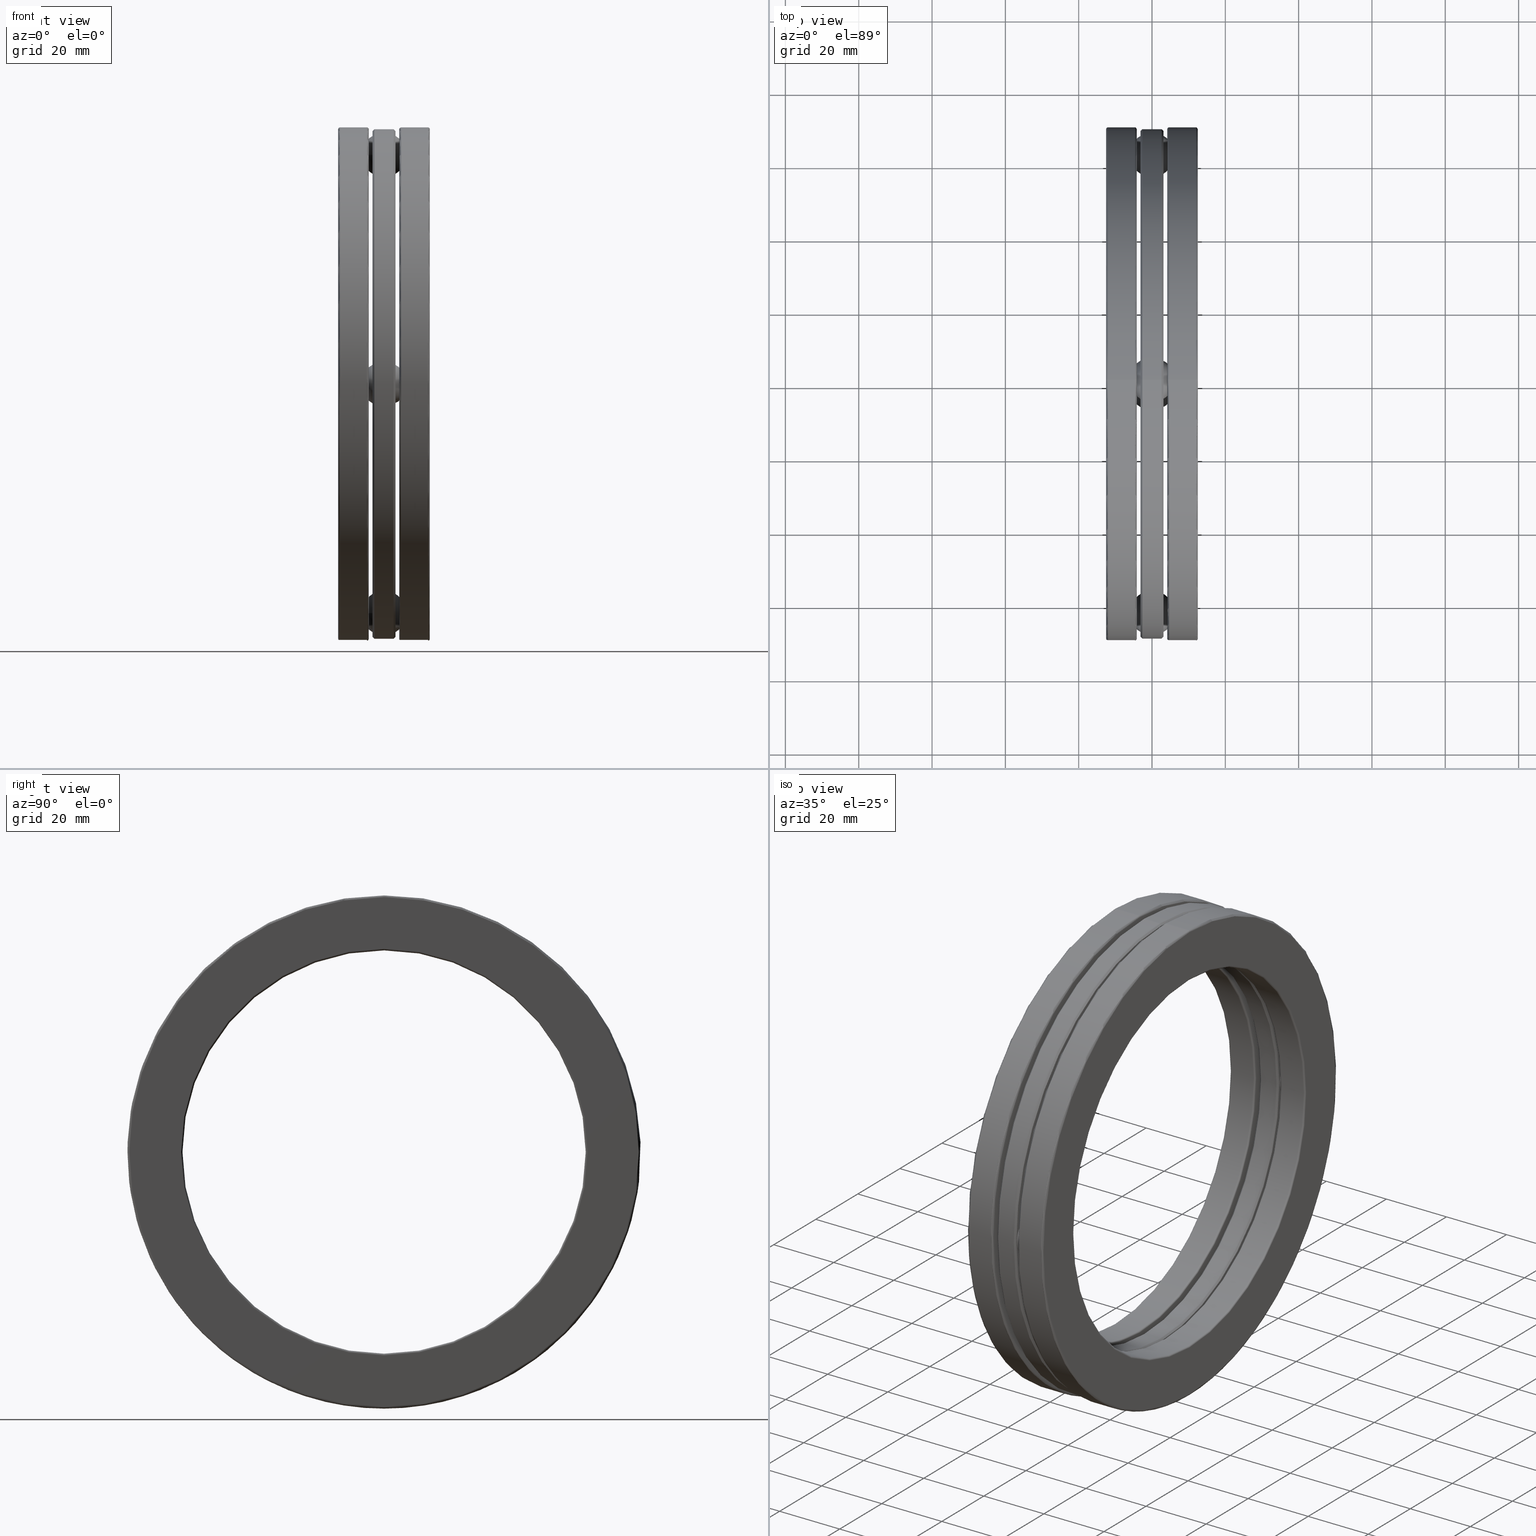
[diagram: canonical four-view strip — front | top / right | iso, engineering-drawing reading convention]
A machine part, canonical four-view strip (front | top / right | iso — engineering-drawing reading convention). The complete STEP part file that produces these views, byte-faithful:
ISO-10303-21;
HEADER;
FILE_DESCRIPTION (( 'STEP AP203' ),
    '1' );
FILE_NAME ('2921-ABB.step',
    '2017-03-07T16:43:14',
    ( '' ),
    ( '' ),
    'SwSTEP 2.0',
    'SolidWorks 2017',
    '' );
FILE_SCHEMA (( 'CONFIG_CONTROL_DESIGN' ));
ENDSEC;

DATA;
#1 = SECURITY_CLASSIFICATION_LEVEL ( 'unclassified' ) ;
#2 = EDGE_LOOP ( 'NONE', ( #341 ) ) ;
#3 = FACE_OUTER_BOUND ( 'NONE', #442, .T. ) ;
#4 = MECHANICAL_CONTEXT ( 'NONE', #197, 'mechanical' ) ;
#5 = CONICAL_SURFACE ( 'NONE', #461, 2.205499999999999800, 0.7853981633974437300 ) ;
#6 = AXIS2_PLACEMENT_3D ( 'NONE', #328, #74, #515 ) ;
#7 = DIRECTION ( 'NONE',  ( -1.000000000000000000, -0.0000000000000000000, -0.0000000000000000000 ) ) ;
#8 = DIRECTION ( 'NONE',  ( -1.000000000000000000, -0.0000000000000000000, -0.0000000000000000000 ) ) ;
#9 = FACE_BOUND ( 'NONE', #388, .T. ) ;
#10 = EDGE_LOOP ( 'NONE', ( #631 ) ) ;
#11 = AXIS2_PLACEMENT_3D ( 'NONE', #387, #265, #450 ) ;
#12 = DIRECTION ( 'NONE',  ( -1.000000000000000000, -0.0000000000000000000, -0.0000000000000000000 ) ) ;
#13 = CYLINDRICAL_SURFACE ( 'NONE', #183, 2.755999999999998900 ) ;
#14 = VERTEX_POINT ( 'NONE', #569 ) ;
#15 = DIRECTION ( 'NONE',  ( 0.0000000000000000000, 0.0000000000000000000, 1.000000000000000000 ) ) ;
#16 = AXIS2_PLACEMENT_3D ( 'NONE', #214, #541, #587 ) ;
#17 = CC_DESIGN_APPROVAL ( #731, ( #567 ) ) ;
#18 = CARTESIAN_POINT ( 'NONE',  ( 0.1640032800000010000, 0.0000000000000000000, 0.0000000000000000000 ) ) ;
#19 = DIRECTION ( 'NONE',  ( 0.0000000000000000000, 0.0000000000000000000, -1.000000000000000000 ) ) ;
#20 = EDGE_LOOP ( 'NONE', ( #379 ) ) ;
#21 = ORIENTED_EDGE ( 'NONE', *, *, #413, .T. ) ;
#22 = DIRECTION ( 'NONE',  ( 1.000000000000000000, 0.0000000000000000000, 0.0000000000000000000 ) ) ;
#23 = CYLINDRICAL_SURFACE ( 'NONE', #102, 2.755999999999999800 ) ;
#24 = DIRECTION ( 'NONE',  ( 1.000000000000000000, 0.0000000000000000000, 0.0000000000000000000 ) ) ;
#25 = VERTEX_POINT ( 'NONE', #423 ) ;
#26 = COORDINATED_UNIVERSAL_TIME_OFFSET ( 5, 0, .BEHIND. ) ;
#27 = EDGE_LOOP ( 'NONE', ( #236 ) ) ;
#28 = FACE_OUTER_BOUND ( 'NONE', #483, .T. ) ;
#29 = EDGE_LOOP ( 'NONE', ( #279 ) ) ;
#30 = CARTESIAN_POINT ( 'NONE',  ( 1.506774805500924100E-016, 2.577498811367471600E-014, 2.460749999999999500 ) ) ;
#31 = CARTESIAN_POINT ( 'NONE',  ( 0.1640032800000010000, 0.0000000000000000000, 0.0000000000000000000 ) ) ;
#32 = FACE_BOUND ( 'NONE', #324, .T. ) ;
#33 = DATE_AND_TIME ( #385, #538 ) ;
#34 = CARTESIAN_POINT ( 'NONE',  ( -0.1230000000000000300, 0.0000000000000000000, 0.0000000000000000000 ) ) ;
#35 = AXIS2_PLACEMENT_3D ( 'NONE', #153, #138, #716 ) ;
#36 = ORIENTED_EDGE ( 'NONE', *, *, #712, .T. ) ;
#37 = DIRECTION ( 'NONE',  ( 1.000000000000000000, 0.0000000000000000000, 0.0000000000000000000 ) ) ;
#38 = EDGE_LOOP ( 'NONE', ( #75 ) ) ;
#39 = EDGE_LOOP ( 'NONE', ( #531 ) ) ;
#40 = CARTESIAN_POINT ( 'NONE',  ( -0.4919999999999999900, 0.0000000000000000000, 0.0000000000000000000 ) ) ;
#41 = CARTESIAN_POINT ( 'NONE',  ( 0.1230000000000000100, -2.460749999999999500, 0.0000000000000000000 ) ) ;
#42 = ADVANCED_FACE ( 'NONE', ( ), #485, .T. ) ;
#43 = EDGE_CURVE ( 'NONE', #588, #588, #780, .T. ) ;
#44 = VERTEX_POINT ( 'NONE', #495 ) ;
#45 = COORDINATED_UNIVERSAL_TIME_OFFSET ( 5, 0, .BEHIND. ) ;
#46 = CARTESIAN_POINT ( 'NONE',  ( 0.1640032800000010000, 0.0000000000000000000, 2.735999999999999300 ) ) ;
#47 = DIRECTION ( 'NONE',  ( -1.000000000000000000, -0.0000000000000000000, -0.0000000000000000000 ) ) ;
#48 = DIRECTION ( 'NONE',  ( 0.0000000000000000000, 0.0000000000000000000, -1.000000000000000000 ) ) ;
#49 = DIRECTION ( 'NONE',  ( -1.000000000000000000, -0.0000000000000000000, -0.0000000000000000000 ) ) ;
#50 = ORIENTED_EDGE ( 'NONE', *, *, #581, .F. ) ;
#51 = AXIS2_PLACEMENT_3D ( 'NONE', #752, #113, #48 ) ;
#52 = ORIENTED_EDGE ( 'NONE', *, *, #286, .T. ) ;
#53 = FACE_OUTER_BOUND ( 'NONE', #79, .T. ) ;
#54 = FACE_OUTER_BOUND ( 'NONE', #162, .T. ) ;
#55 = AXIS2_PLACEMENT_3D ( 'NONE', #168, #804, #97 ) ;
#56 = PERSON_AND_ORGANIZATION_ROLE ( 'design_owner' ) ;
#57 = ORIENTED_EDGE ( 'NONE', *, *, #68, .F. ) ;
#58 = EDGE_CURVE ( 'NONE', #361, #361, #762, .T. ) ;
#59 = CIRCLE ( 'NONE', #135, 2.185500000000000200 ) ;
#60 =( GEOMETRIC_REPRESENTATION_CONTEXT ( 3 ) GLOBAL_UNCERTAINTY_ASSIGNED_CONTEXT ( ( #808 ) ) GLOBAL_UNIT_ASSIGNED_CONTEXT ( ( #121, #192, #571 ) ) REPRESENTATION_CONTEXT ( 'NONE', 'WORKASPACE' ) );
#61 = APPLICATION_PROTOCOL_DEFINITION ( 'international standard', 'config_control_design', 1994, #125 ) ;
#62 = VERTEX_POINT ( 'NONE', #754 ) ;
#63 = AXIS2_PLACEMENT_3D ( 'NONE', #711, #133, #269 ) ;
#64 = CARTESIAN_POINT ( 'NONE',  ( 0.4920000000000003300, 0.0000000000000000000, 0.0000000000000000000 ) ) ;
#65 = DIRECTION ( 'NONE',  ( 0.0000000000000000000, 0.0000000000000000000, 1.000000000000000000 ) ) ;
#66 = ORIENTED_EDGE ( 'NONE', *, *, #58, .T. ) ;
#67 = EDGE_LOOP ( 'NONE', ( #414 ) ) ;
#68 = EDGE_CURVE ( 'NONE', #699, #699, #603, .T. ) ;
#69 = FACE_OUTER_BOUND ( 'NONE', #369, .T. ) ;
#70 = DIRECTION ( 'NONE',  ( -1.000000000000000000, -0.0000000000000000000, -0.0000000000000000000 ) ) ;
#71 = FACE_OUTER_BOUND ( 'NONE', #622, .T. ) ;
#72 = CIRCLE ( 'NONE', #55, 2.755999999999998900 ) ;
#73 = VERTEX_POINT ( 'NONE', #117 ) ;
#74 = DIRECTION ( 'NONE',  ( -1.000000000000000000, -0.0000000000000000000, -0.0000000000000000000 ) ) ;
#75 = ORIENTED_EDGE ( 'NONE', *, *, #286, .F. ) ;
#76 = CARTESIAN_POINT ( 'NONE',  ( 0.1230000000000000100, 1.645530378162120400E-017, 0.0000000000000000000 ) ) ;
#77 = DIRECTION ( 'NONE',  ( 0.0000000000000000000, 0.0000000000000000000, 1.000000000000000000 ) ) ;
#78 = CYLINDRICAL_SURFACE ( 'NONE', #273, 0.2470000000000006100 ) ;
#79 = EDGE_LOOP ( 'NONE', ( #267 ) ) ;
#80 = CARTESIAN_POINT ( 'NONE',  ( -0.4920393700787401000, -2.460749999999999500, 0.0000000000000000000 ) ) ;
#81 = FACE_BOUND ( 'NONE', #98, .T. ) ;
#82 = LENGTH_MEASURE_WITH_UNIT ( LENGTH_MEASURE( 0.02539999999999999900 ), #548 );
#83 = DIRECTION ( 'NONE',  ( -1.000000000000000000, -0.0000000000000000000, -0.0000000000000000000 ) ) ;
#84 = ADVANCED_FACE ( 'NONE', ( #71, #293 ), #739, .F. ) ;
#85 = EDGE_CURVE ( 'NONE', #526, #526, #259, .T. ) ;
#86 = CARTESIAN_POINT ( 'NONE',  ( 0.0000000000000000000, 0.0000000000000000000, 0.0000000000000000000 ) ) ;
#87 = EDGE_LOOP ( 'NONE', ( #694 ) ) ;
#88 = DIRECTION ( 'NONE',  ( 0.0000000000000000000, 0.0000000000000000000, 1.000000000000000000 ) ) ;
#89 = FACE_OUTER_BOUND ( 'NONE', #39, .T. ) ;
#90 = DIRECTION ( 'NONE',  ( 0.0000000000000000000, -1.000000000000000000, 4.424045333869241100E-015 ) ) ;
#91 = CARTESIAN_POINT ( 'NONE',  ( 0.4920000000000003300, 0.0000000000000000000, 0.0000000000000000000 ) ) ;
#92 = ADVANCED_FACE ( 'NONE', ( #584, #566 ), #456, .F. ) ;
#93 = FACE_BOUND ( 'NONE', #580, .T. ) ;
#94 = APPROVAL_DATE_TIME ( #176, #731 ) ;
#95 = DIRECTION ( 'NONE',  ( -1.000000000000000000, -0.0000000000000000000, -0.0000000000000000000 ) ) ;
#96 = AXIS2_PLACEMENT_3D ( 'NONE', #513, #70, #505 ) ;
#97 = DIRECTION ( 'NONE',  ( 0.0000000000000000000, 0.0000000000000000000, 1.000000000000000000 ) ) ;
#98 = EDGE_LOOP ( 'NONE', ( #219 ) ) ;
#99 = FACE_OUTER_BOUND ( 'NONE', #333, .T. ) ;
#100 = CLOSED_SHELL ( 'NONE', ( #543, #370, #648, #111, #355, #92, #477, #470, #255, #717 ) ) ;
#101 = DIRECTION ( 'NONE',  ( 1.000000000000000000, 0.0000000000000000000, 0.0000000000000000000 ) ) ;
#102 = AXIS2_PLACEMENT_3D ( 'NONE', #406, #418, #77 ) ;
#103 = APPROVAL ( #321, 'UNSPECIFIED' ) ;
#104 = CARTESIAN_POINT ( 'NONE',  ( -0.1840032799999996600, 0.0000000000000000000, 0.0000000000000000000 ) ) ;
#105 = CIRCLE ( 'NONE', #589, 2.185499999999999800 ) ;
#106 = CARTESIAN_POINT ( 'NONE',  ( 0.1640032800000010000, 0.0000000000000000000, 2.185499999999999800 ) ) ;
#107 = CARTESIAN_POINT ( 'NONE',  ( -0.1229999999999999600, 2.577498811367471600E-014, 2.460749999999999500 ) ) ;
#108 = AXIS2_PLACEMENT_3D ( 'NONE', #769, #12, #579 ) ;
#109 = CARTESIAN_POINT ( 'NONE',  ( -0.1229999999999999600, 2.460749999999999500, -0.2470000000000006100 ) ) ;
#110 = EDGE_LOOP ( 'NONE', ( #50 ) ) ;
#111 = ADVANCED_FACE ( 'NONE', ( #502, #170 ), #23, .T. ) ;
#112 = FACE_OUTER_BOUND ( 'NONE', #434, .T. ) ;
#113 = DIRECTION ( 'NONE',  ( 1.000000000000000000, 0.0000000000000000000, 0.0000000000000000000 ) ) ;
#114 = EDGE_CURVE ( 'NONE', #193, #193, #673, .T. ) ;
#115 = CIRCLE ( 'NONE', #767, 2.735999999999999300 ) ;
#116 = DIRECTION ( 'NONE',  ( -1.000000000000000000, -0.0000000000000000000, -0.0000000000000000000 ) ) ;
#117 = CARTESIAN_POINT ( 'NONE',  ( -0.1640032799999996700, 0.0000000000000000000, 2.185500000000000200 ) ) ;
#118 = EDGE_LOOP ( 'NONE', ( #519 ) ) ;
#119 = ORIENTED_EDGE ( 'NONE', *, *, #329, .F. ) ;
#120 = FACE_OUTER_BOUND ( 'NONE', #797, .T. ) ;
#121 =( CONVERSION_BASED_UNIT ( 'INCH', #82 ) LENGTH_UNIT ( ) NAMED_UNIT ( #683 ) );
#122 = ORIENTED_EDGE ( 'NONE', *, *, #200, .F. ) ;
#123 = AXIS2_PLACEMENT_3D ( 'NONE', #645, #24, #213 ) ;
#124 = VERTEX_POINT ( 'NONE', #681 ) ;
#125 = APPLICATION_CONTEXT ( 'configuration controlled 3d designs of mechanical parts and assemblies' ) ;
#126 = APPROVAL_STATUS ( 'not_yet_approved' ) ;
#127 = ORIENTED_EDGE ( 'NONE', *, *, #634, .T. ) ;
#128 = EDGE_CURVE ( 'NONE', #215, #215, #325, .T. ) ;
#129 = DIRECTION ( 'NONE',  ( -1.000000000000000000, -0.0000000000000000000, -0.0000000000000000000 ) ) ;
#130 = ORIENTED_EDGE ( 'NONE', *, *, #114, .F. ) ;
#131 = FACE_OUTER_BOUND ( 'NONE', #350, .T. ) ;
#132 = CIRCLE ( 'NONE', #243, 2.185499999999999800 ) ;
#133 = DIRECTION ( 'NONE',  ( -1.000000000000000000, -0.0000000000000000000, -0.0000000000000000000 ) ) ;
#134 = ORIENTED_EDGE ( 'NONE', *, *, #172, .F. ) ;
#135 = AXIS2_PLACEMENT_3D ( 'NONE', #205, #344, #88 ) ;
#136 = CIRCLE ( 'NONE', #235, 0.2470000000000006100 ) ;
#137 = EDGE_LOOP ( 'NONE', ( #522 ) ) ;
#138 = DIRECTION ( 'NONE',  ( -1.000000000000000000, -0.0000000000000000000, -0.0000000000000000000 ) ) ;
#139 = FACE_OUTER_BOUND ( 'NONE', #222, .T. ) ;
#140 = CALENDAR_DATE ( 2017, 7, 3 ) ;
#141 = AXIS2_PLACEMENT_3D ( 'NONE', #41, #484, #676 ) ;
#142 = CC_DESIGN_PERSON_AND_ORGANIZATION_ASSIGNMENT ( #755, #633, ( #624 ) ) ;
#143 = DIRECTION ( 'NONE',  ( 0.0000000000000000000, 1.000000000000000000, -1.106011333467310400E-014 ) ) ;
#144 = CARTESIAN_POINT ( 'NONE',  ( -0.4719999999999999200, 0.0000000000000000000, 0.0000000000000000000 ) ) ;
#145 = DIRECTION ( 'NONE',  ( 0.0000000000000000000, -1.000000000000000000, 4.424045333869241100E-015 ) ) ;
#146 = EDGE_LOOP ( 'NONE', ( #398 ) ) ;
#147 = DIRECTION ( 'NONE',  ( -1.000000000000000000, -0.0000000000000000000, -0.0000000000000000000 ) ) ;
#148 = ORIENTED_EDGE ( 'NONE', *, *, #343, .T. ) ;
#149 = DIRECTION ( 'NONE',  ( 1.000000000000000000, 0.0000000000000000000, 0.0000000000000000000 ) ) ;
#150 = EDGE_LOOP ( 'NONE', ( #390 ) ) ;
#151 = AXIS2_PLACEMENT_3D ( 'NONE', #726, #337, #342 ) ;
#152 = MANIFOLD_SOLID_BREP ( 'CirPattern7', #777 ) ;
#153 = CARTESIAN_POINT ( 'NONE',  ( -0.1029999999999999700, 0.0000000000000000000, 0.0000000000000000000 ) ) ;
#154 = FACE_BOUND ( 'NONE', #706, .T. ) ;
#155 = EDGE_CURVE ( 'NONE', #384, #384, #728, .T. ) ;
#156 = ADVANCED_FACE ( 'NONE', ( #191, #28 ), #78, .F. ) ;
#157 = CARTESIAN_POINT ( 'NONE',  ( -0.1230000000000000300, 0.0000000000000000000, 0.0000000000000000000 ) ) ;
#158 = ORIENTED_EDGE ( 'NONE', *, *, #386, .T. ) ;
#159 = CLOSED_SHELL ( 'NONE', ( #317 ) ) ;
#160 = DIRECTION ( 'NONE',  ( 0.0000000000000000000, 0.0000000000000000000, 1.000000000000000000 ) ) ;
#161 = FACE_OUTER_BOUND ( 'NONE', #271, .T. ) ;
#162 = EDGE_LOOP ( 'NONE', ( #218 ) ) ;
#163 = APPROVAL ( #126, 'UNSPECIFIED' ) ;
#164 = FACE_OUTER_BOUND ( 'NONE', #639, .T. ) ;
#165 = LOCAL_TIME ( 11, 43, 14.00000000000000000, #320 ) ;
#166 = DIRECTION ( 'NONE',  ( -1.000000000000000000, 0.0000000000000000000, 0.0000000000000000000 ) ) ;
#167 = AXIS2_PLACEMENT_3D ( 'NONE', #656, #346, #143 ) ;
#168 = CARTESIAN_POINT ( 'NONE',  ( 0.1840032800000009600, 0.0000000000000000000, 0.0000000000000000000 ) ) ;
#169 = ORIENTED_EDGE ( 'NONE', *, *, #413, .F. ) ;
#170 = FACE_OUTER_BOUND ( 'NONE', #620, .T. ) ;
#171 = CARTESIAN_POINT ( 'NONE',  ( -0.1840032799999997100, 0.0000000000000000000, 0.0000000000000000000 ) ) ;
#172 = EDGE_CURVE ( 'NONE', #25, #25, #392, .T. ) ;
#173 = ADVANCED_FACE ( 'NONE', ( #3, #131 ), #512, .F. ) ;
#174 = CARTESIAN_POINT ( 'NONE',  ( -0.1230000000000000300, 0.0000000000000000000, 2.716000000000000200 ) ) ;
#175 = DIRECTION ( 'NONE',  ( 0.0000000000000000000, 0.0000000000000000000, -1.000000000000000000 ) ) ;
#176 = DATE_AND_TIME ( #345, #508 ) ;
#177 = CARTESIAN_POINT ( 'NONE',  ( -0.4719999999999999200, 0.0000000000000000000, 2.165499999999999800 ) ) ;
#178 = DIRECTION ( 'NONE',  ( 0.0000000000000000000, 1.000000000000000000, -8.848090667738482200E-015 ) ) ;
#179 = CARTESIAN_POINT ( 'NONE',  ( 0.4720000000000012000, 0.0000000000000000000, 2.755999999999998900 ) ) ;
#180 = FACE_OUTER_BOUND ( 'NONE', #600, .T. ) ;
#181 = ORIENTED_EDGE ( 'NONE', *, *, #617, .F. ) ;
#182 = CARTESIAN_POINT ( 'NONE',  ( 0.1230000000000000100, -0.2470000000000092100, -2.460749999999998700 ) ) ;
#183 = AXIS2_PLACEMENT_3D ( 'NONE', #591, #596, #723 ) ;
#184 = FACE_BOUND ( 'NONE', #187, .T. ) ;
#185 = PERSON_AND_ORGANIZATION ( #284, #376 ) ;
#186 = EDGE_CURVE ( 'NONE', #403, #403, #136, .T. ) ;
#187 = EDGE_LOOP ( 'NONE', ( #209 ) ) ;
#188 = MANIFOLD_SOLID_BREP ( 'CirPattern4[2]', #500 ) ;
#189 = EDGE_LOOP ( 'NONE', ( #127 ) ) ;
#190 = APPROVAL_ROLE ( '' ) ;
#191 = FACE_OUTER_BOUND ( 'NONE', #150, .T. ) ;
#192 =( NAMED_UNIT ( * ) PLANE_ANGLE_UNIT ( ) SI_UNIT ( $, .RADIAN. ) );
#193 = VERTEX_POINT ( 'NONE', #179 ) ;
#194 = AXIS2_PLACEMENT_3D ( 'NONE', #776, #198, #578 ) ;
#195 = DIRECTION ( 'NONE',  ( -1.000000000000000000, -0.0000000000000000000, -0.0000000000000000000 ) ) ;
#196 = VERTEX_POINT ( 'NONE', #182 ) ;
#197 = APPLICATION_CONTEXT ( 'configuration controlled 3d designs of mechanical parts and assemblies' ) ;
#198 = DIRECTION ( 'NONE',  ( -1.000000000000000000, -0.0000000000000000000, -0.0000000000000000000 ) ) ;
#199 = CARTESIAN_POINT ( 'NONE',  ( -0.1030000000000000400, 0.0000000000000000000, 0.0000000000000000000 ) ) ;
#200 = EDGE_CURVE ( 'NONE', #62, #62, #307, .T. ) ;
#201 = TOROIDAL_SURFACE ( 'NONE', #809, 2.185499999999999800, 0.01999999999999973700 ) ;
#202 = EDGE_LOOP ( 'NONE', ( #564 ) ) ;
#203 = FACE_OUTER_BOUND ( 'NONE', #316, .T. ) ;
#204 = DATE_AND_TIME ( #216, #721 ) ;
#205 = CARTESIAN_POINT ( 'NONE',  ( -0.1640032799999996700, 0.0000000000000000000, 0.0000000000000000000 ) ) ;
#206 = DIRECTION ( 'NONE',  ( -1.000000000000000000, -0.0000000000000000000, -0.0000000000000000000 ) ) ;
#207 = EDGE_LOOP ( 'NONE', ( #419 ) ) ;
#208 = AXIS2_PLACEMENT_3D ( 'NONE', #76, #37, #296 ) ;
#209 = ORIENTED_EDGE ( 'NONE', *, *, #647, .F. ) ;
#210 = DIRECTION ( 'NONE',  ( 0.0000000000000000000, 0.0000000000000000000, -1.000000000000000000 ) ) ;
#211 = DIRECTION ( 'NONE',  ( 0.0000000000000000000, 0.0000000000000000000, 1.000000000000000000 ) ) ;
#212 = EDGE_LOOP ( 'NONE', ( #542 ) ) ;
#213 = DIRECTION ( 'NONE',  ( 0.0000000000000000000, 0.0000000000000000000, -1.000000000000000000 ) ) ;
#214 = CARTESIAN_POINT ( 'NONE',  ( 0.4920000000000003300, 0.0000000000000000000, 0.0000000000000000000 ) ) ;
#215 = VERTEX_POINT ( 'NONE', #555 ) ;
#216 = CALENDAR_DATE ( 2017, 7, 3 ) ;
#217 = ADVANCED_BREP_SHAPE_REPRESENTATION ( '2921-ABB', ( #248, #627, #504, #480, #188, #653, #152, #821 ), #60 ) ;
#218 = ORIENTED_EDGE ( 'NONE', *, *, #58, .F. ) ;
#219 = ORIENTED_EDGE ( 'NONE', *, *, #454, .F. ) ;
#220 = CYLINDRICAL_SURFACE ( 'NONE', #96, 2.165500000000000600 ) ;
#221 = CC_DESIGN_DATE_AND_TIME_ASSIGNMENT ( #823, #700, ( #624 ) ) ;
#222 = EDGE_LOOP ( 'NONE', ( #759 ) ) ;
#223 = DIRECTION ( 'NONE',  ( -1.000000000000000000, -0.0000000000000000000, -0.0000000000000000000 ) ) ;
#224 = FACE_BOUND ( 'NONE', #67, .T. ) ;
#225 = VERTEX_POINT ( 'NONE', #552 ) ;
#226 = AXIS2_PLACEMENT_3D ( 'NONE', #468, #530, #145 ) ;
#227 = DESIGN_CONTEXT ( 'detailed design', #125, 'design' ) ;
#228 = DIRECTION ( 'NONE',  ( -1.000000000000000000, -0.0000000000000000000, -0.0000000000000000000 ) ) ;
#229 = ADVANCED_FACE ( 'NONE', ( #349, #180 ), #610, .T. ) ;
#230 = EDGE_LOOP ( 'NONE', ( #714 ) ) ;
#231 = DIRECTION ( 'NONE',  ( -1.000000000000000000, -0.0000000000000000000, -0.0000000000000000000 ) ) ;
#232 = TOROIDAL_SURFACE ( 'NONE', #604, 2.185499999999999800, 0.02000000000000002500 ) ;
#233 = DATE_AND_TIME ( #400, #521 ) ;
#234 = DIRECTION ( 'NONE',  ( 0.0000000000000000000, -1.000000000000000000, 2.212022666934620500E-015 ) ) ;
#235 = AXIS2_PLACEMENT_3D ( 'NONE', #107, #49, #178 ) ;
#236 = ORIENTED_EDGE ( 'NONE', *, *, #128, .T. ) ;
#237 = ADVANCED_FACE ( 'NONE', ( #437, #313 ), #789, .F. ) ;
#238 = CARTESIAN_POINT ( 'NONE',  ( 0.1230000000000000100, 2.460749999999999500, 0.0000000000000000000 ) ) ;
#239 = VERTEX_POINT ( 'NONE', #675 ) ;
#240 = CARTESIAN_POINT ( 'NONE',  ( 0.1029999999999999700, 0.0000000000000000000, 2.736000000000000200 ) ) ;
#241 = DIRECTION ( 'NONE',  ( -1.000000000000000000, -0.0000000000000000000, -0.0000000000000000000 ) ) ;
#242 = ADVANCED_FACE ( 'NONE', ( ), #399, .T. ) ;
#243 = AXIS2_PLACEMENT_3D ( 'NONE', #475, #416, #657 ) ;
#244 = CARTESIAN_POINT ( 'NONE',  ( -0.4919999999999999900, 0.0000000000000000000, 2.185499999999999800 ) ) ;
#245 = EDGE_LOOP ( 'NONE', ( #130 ) ) ;
#246 = EDGE_LOOP ( 'NONE', ( #408 ) ) ;
#247 = FACE_OUTER_BOUND ( 'NONE', #725, .T. ) ;
#248 = MANIFOLD_SOLID_BREP ( 'Revolve1', #100 ) ;
#249 = DIRECTION ( 'NONE',  ( 0.0000000000000000000, 0.0000000000000000000, 1.000000000000000000 ) ) ;
#250 = DIRECTION ( 'NONE',  ( 0.0000000000000000000, 0.0000000000000000000, 1.000000000000000000 ) ) ;
#251 = EDGE_CURVE ( 'NONE', #718, #718, #291, .T. ) ;
#252 = CONICAL_SURFACE ( 'NONE', #501, 2.736000000000000200, 0.7853981633974427300 ) ;
#253 = VERTEX_POINT ( 'NONE', #46 ) ;
#254 = CARTESIAN_POINT ( 'NONE',  ( 0.1229999999999999700, 0.0000000000000000000, 2.716000000000000200 ) ) ;
#255 = ADVANCED_FACE ( 'NONE', ( #760, #89 ), #232, .T. ) ;
#256 = APPROVAL_ROLE ( '' ) ;
#257 = ORIENTED_EDGE ( 'NONE', *, *, #665, .T. ) ;
#258 = FACE_OUTER_BOUND ( 'NONE', #20, .T. ) ;
#259 = CIRCLE ( 'NONE', #493, 2.165500000000000600 ) ;
#260 = VERTEX_POINT ( 'NONE', #486 ) ;
#261 = DIRECTION ( 'NONE',  ( 1.000000000000000000, 0.0000000000000000000, 0.0000000000000000000 ) ) ;
#262 = EDGE_CURVE ( 'NONE', #506, #506, #445, .T. ) ;
#263 = ORIENTED_EDGE ( 'NONE', *, *, #343, .F. ) ;
#264 = FACE_OUTER_BOUND ( 'NONE', #451, .T. ) ;
#265 = DIRECTION ( 'NONE',  ( 1.000000000000000000, 0.0000000000000000000, 0.0000000000000000000 ) ) ;
#266 = CIRCLE ( 'NONE', #573, 2.755999999999999800 ) ;
#267 = ORIENTED_EDGE ( 'NONE', *, *, #815, .F. ) ;
#268 = AXIS2_PLACEMENT_3D ( 'NONE', #34, #605, #742 ) ;
#269 = DIRECTION ( 'NONE',  ( 0.0000000000000000000, 0.0000000000000000000, 1.000000000000000000 ) ) ;
#270 = CIRCLE ( 'NONE', #194, 2.165500000000000600 ) ;
#271 = EDGE_LOOP ( 'NONE', ( #304 ) ) ;
#272 = DIRECTION ( 'NONE',  ( -1.000000000000000000, -0.0000000000000000000, -0.0000000000000000000 ) ) ;
#273 = AXIS2_PLACEMENT_3D ( 'NONE', #80, #525, #277 ) ;
#274 = SPHERICAL_SURFACE ( 'NONE', #446, 0.2419999999999999100 ) ;
#275 = DIRECTION ( 'NONE',  ( 1.000000000000000000, 0.0000000000000000000, 0.0000000000000000000 ) ) ;
#276 = VERTEX_POINT ( 'NONE', #303 ) ;
#277 = DIRECTION ( 'NONE',  ( 0.0000000000000000000, 0.0000000000000000000, 1.000000000000000000 ) ) ;
#278 = DIRECTION ( 'NONE',  ( 0.0000000000000000000, 0.0000000000000000000, 1.000000000000000000 ) ) ;
#279 = ORIENTED_EDGE ( 'NONE', *, *, #772, .F. ) ;
#280 = AXIS2_PLACEMENT_3D ( 'NONE', #104, #545, #160 ) ;
#281 = EDGE_LOOP ( 'NONE', ( #367 ) ) ;
#282 = DIRECTION ( 'NONE',  ( 0.0000000000000000000, 0.0000000000000000000, 1.000000000000000000 ) ) ;
#283 = FACE_OUTER_BOUND ( 'NONE', #137, .T. ) ;
#284 = PERSON ( 'UNSPECIFIED', 'UNSPECIFIED', 'UNSPECIFIED', ('UNSPECIFIED'), ('UNSPECIFIED'), ('UNSPECIFIED') ) ;
#285 = CIRCLE ( 'NONE', #268, 2.716000000000000200 ) ;
#286 = EDGE_CURVE ( 'NONE', #239, #239, #771, .T. ) ;
#287 = PLANE ( 'NONE',  #353 ) ;
#288 = DIRECTION ( 'NONE',  ( 0.0000000000000000000, 0.0000000000000000000, 1.000000000000000000 ) ) ;
#289 = EDGE_LOOP ( 'NONE', ( #649 ) ) ;
#290 = ORIENTED_EDGE ( 'NONE', *, *, #815, .T. ) ;
#291 = CIRCLE ( 'NONE', #824, 0.2470000000000006100 ) ;
#292 = ADVANCED_FACE ( 'NONE', ( #565, #283 ), #201, .T. ) ;
#293 = FACE_OUTER_BOUND ( 'NONE', #281, .T. ) ;
#294 = DIRECTION ( 'NONE',  ( 0.0000000000000000000, 0.0000000000000000000, 1.000000000000000000 ) ) ;
#295 = CARTESIAN_POINT ( 'NONE',  ( 1.506774805500924100E-016, 2.460749999999999500, 0.0000000000000000000 ) ) ;
#296 = DIRECTION ( 'NONE',  ( 0.0000000000000000000, 0.0000000000000000000, -1.000000000000000000 ) ) ;
#297 = FACE_BOUND ( 'NONE', #302, .T. ) ;
#298 = ADVANCED_FACE ( 'NONE', ( #247, #595 ), #707, .F. ) ;
#299 = VERTEX_POINT ( 'NONE', #174 ) ;
#300 = AXIS2_PLACEMENT_3D ( 'NONE', #559, #47, #756 ) ;
#301 = DIRECTION ( 'NONE',  ( 0.0000000000000000000, 0.0000000000000000000, -1.000000000000000000 ) ) ;
#302 = EDGE_LOOP ( 'NONE', ( #380 ) ) ;
#303 = CARTESIAN_POINT ( 'NONE',  ( 0.1640032800000010000, 0.0000000000000000000, 2.282797972337370100 ) ) ;
#304 = ORIENTED_EDGE ( 'NONE', *, *, #155, .F. ) ;
#305 = DIRECTION ( 'NONE',  ( 0.0000000000000000000, 0.0000000000000000000, -1.000000000000000000 ) ) ;
#306 = EDGE_CURVE ( 'NONE', #743, #743, #558, .T. ) ;
#307 = CIRCLE ( 'NONE', #322, 0.2470000000000006100 ) ;
#308 = CARTESIAN_POINT ( 'NONE',  ( -0.1030000000000000400, 0.0000000000000000000, 2.736000000000000200 ) ) ;
#309 = FACE_BOUND ( 'NONE', #29, .T. ) ;
#310 = CARTESIAN_POINT ( 'NONE',  ( 0.4920000000000003300, 0.0000000000000000000, 2.735999999999999300 ) ) ;
#311 = DIRECTION ( 'NONE',  ( -1.000000000000000000, -0.0000000000000000000, -0.0000000000000000000 ) ) ;
#312 = CARTESIAN_POINT ( 'NONE',  ( -0.1640032799999996700, 0.0000000000000000000, 2.638702027662630300 ) ) ;
#313 = FACE_OUTER_BOUND ( 'NONE', #439, .T. ) ;
#314 = DIRECTION ( 'NONE',  ( -1.000000000000000000, -0.0000000000000000000, -0.0000000000000000000 ) ) ;
#315 = DIRECTION ( 'NONE',  ( -1.000000000000000000, -0.0000000000000000000, -0.0000000000000000000 ) ) ;
#316 = EDGE_LOOP ( 'NONE', ( #695 ) ) ;
#317 = ADVANCED_FACE ( 'NONE', ( ), #796, .T. ) ;
#318 = CARTESIAN_POINT ( 'NONE',  ( 0.1640032800000010000, 0.0000000000000000000, 2.638702027662629400 ) ) ;
#319 = FACE_OUTER_BOUND ( 'NONE', #338, .T. ) ;
#320 = COORDINATED_UNIVERSAL_TIME_OFFSET ( 5, 0, .BEHIND. ) ;
#321 = APPROVAL_STATUS ( 'not_yet_approved' ) ;
#322 = AXIS2_PLACEMENT_3D ( 'NONE', #238, #672, #305 ) ;
#323 = CC_DESIGN_SECURITY_CLASSIFICATION ( #624, ( #567 ) ) ;
#324 = EDGE_LOOP ( 'NONE', ( #443 ) ) ;
#325 = CIRCLE ( 'NONE', #16, 2.185499999999999800 ) ;
#326 = AXIS2_PLACEMENT_3D ( 'NONE', #157, #729, #301 ) ;
#327 = FACE_OUTER_BOUND ( 'NONE', #768, .T. ) ;
#328 = CARTESIAN_POINT ( 'NONE',  ( 1.506774805500924100E-016, 0.0000000000000000000, 0.0000000000000000000 ) ) ;
#329 = EDGE_CURVE ( 'NONE', #44, #44, #270, .T. ) ;
#330 = DIRECTION ( 'NONE',  ( 0.0000000000000000000, 1.000000000000000000, -3.491481338843133400E-015 ) ) ;
#331 = EDGE_LOOP ( 'NONE', ( #592 ) ) ;
#332 = TOROIDAL_SURFACE ( 'NONE', #108, 2.185499999999999800, 0.01999999999999931000 ) ;
#333 = EDGE_LOOP ( 'NONE', ( #734 ) ) ;
#334 = CONICAL_SURFACE ( 'NONE', #488, 2.205499999999999800, 0.7853981633974427300 ) ;
#335 = DIRECTION ( 'NONE',  ( 0.0000000000000000000, 0.0000000000000000000, 1.000000000000000000 ) ) ;
#336 = AXIS2_PLACEMENT_3D ( 'NONE', #763, #330, #436 ) ;
#337 = DIRECTION ( 'NONE',  ( -1.000000000000000000, -0.0000000000000000000, -0.0000000000000000000 ) ) ;
#338 = EDGE_LOOP ( 'NONE', ( #496 ) ) ;
#339 = CARTESIAN_POINT ( 'NONE',  ( -0.4920393700787401000, 2.577498811367471600E-014, 2.460749999999999500 ) ) ;
#340 = ORIENTED_EDGE ( 'NONE', *, *, #155, .T. ) ;
#341 = ORIENTED_EDGE ( 'NONE', *, *, #712, .F. ) ;
#342 = DIRECTION ( 'NONE',  ( 0.0000000000000000000, 0.0000000000000000000, 1.000000000000000000 ) ) ;
#343 = EDGE_CURVE ( 'NONE', #677, #677, #372, .T. ) ;
#344 = DIRECTION ( 'NONE',  ( -1.000000000000000000, -0.0000000000000000000, -0.0000000000000000000 ) ) ;
#345 = CALENDAR_DATE ( 2017, 7, 3 ) ;
#346 = DIRECTION ( 'NONE',  ( 1.000000000000000000, 0.0000000000000000000, 0.0000000000000000000 ) ) ;
#347 = ADVANCED_FACE ( 'NONE', ( #112, #750 ), #428, .T. ) ;
#348 = DIRECTION ( 'NONE',  ( 0.0000000000000000000, 0.0000000000000000000, -1.000000000000000000 ) ) ;
#349 = FACE_OUTER_BOUND ( 'NONE', #245, .T. ) ;
#350 = EDGE_LOOP ( 'NONE', ( #788 ) ) ;
#351 = DIRECTION ( 'NONE',  ( 0.0000000000000000000, 0.0000000000000000000, 1.000000000000000000 ) ) ;
#352 = FACE_OUTER_BOUND ( 'NONE', #2, .T. ) ;
#353 = AXIS2_PLACEMENT_3D ( 'NONE', #91, #101, #348 ) ;
#354 = VERTEX_POINT ( 'NONE', #613 ) ;
#355 = ADVANCED_FACE ( 'NONE', ( #53, #264 ), #576, .T. ) ;
#356 = CARTESIAN_POINT ( 'NONE',  ( -0.4919999999999999900, 0.0000000000000000000, 0.0000000000000000000 ) ) ;
#357 = EDGE_LOOP ( 'NONE', ( #464 ) ) ;
#358 = EDGE_LOOP ( 'NONE', ( #671 ) ) ;
#359 = DIRECTION ( 'NONE',  ( 0.0000000000000000000, 0.0000000000000000000, 1.000000000000000000 ) ) ;
#360 = DIRECTION ( 'NONE',  ( -1.000000000000000000, -0.0000000000000000000, -0.0000000000000000000 ) ) ;
#361 = VERTEX_POINT ( 'NONE', #312 ) ;
#362 = CARTESIAN_POINT ( 'NONE',  ( -0.1229999999999999600, 2.460749999999999500, 0.0000000000000000000 ) ) ;
#363 = APPROVAL_PERSON_ORGANIZATION ( #701, #731, #256 ) ;
#364 = AXIS2_PLACEMENT_3D ( 'NONE', #667, #95, #670 ) ;
#365 = ADVANCED_FACE ( 'NONE', ( #409, #69 ), #533, .F. ) ;
#366 = DIRECTION ( 'NONE',  ( 1.000000000000000000, 0.0000000000000000000, 0.0000000000000000000 ) ) ;
#367 = ORIENTED_EDGE ( 'NONE', *, *, #454, .T. ) ;
#368 = CARTESIAN_POINT ( 'NONE',  ( -0.1229999999999999600, -0.2470000000000092100, -2.460749999999999100 ) ) ;
#369 = EDGE_LOOP ( 'NONE', ( #687 ) ) ;
#370 = ADVANCED_FACE ( 'NONE', ( #9, #494 ), #389, .T. ) ;
#371 = AXIS2_PLACEMENT_3D ( 'NONE', #800, #805, #15 ) ;
#372 = CIRCLE ( 'NONE', #383, 2.735999999999999300 ) ;
#373 = EDGE_LOOP ( 'NONE', ( #630 ) ) ;
#374 = DIRECTION ( 'NONE',  ( 0.0000000000000000000, 0.0000000000000000000, 1.000000000000000000 ) ) ;
#375 = FACE_BOUND ( 'NONE', #511, .T. ) ;
#376 = ORGANIZATION ( 'UNSPECIFIED', 'UNSPECIFIED', '' ) ;
#377 = APPROVAL_ROLE ( '' ) ;
#378 = CARTESIAN_POINT ( 'NONE',  ( 0.1230000000000000400, 0.0000000000000000000, 0.0000000000000000000 ) ) ;
#379 = ORIENTED_EDGE ( 'NONE', *, *, #617, .T. ) ;
#380 = ORIENTED_EDGE ( 'NONE', *, *, #68, .T. ) ;
#381 = SHAPE_DEFINITION_REPRESENTATION ( #438, #217 ) ;
#382 = ORIENTED_EDGE ( 'NONE', *, *, #251, .F. ) ;
#383 = AXIS2_PLACEMENT_3D ( 'NONE', #64, #393, #636 ) ;
#384 = VERTEX_POINT ( 'NONE', #177 ) ;
#385 = CALENDAR_DATE ( 2017, 7, 3 ) ;
#386 = EDGE_CURVE ( 'NONE', #549, #549, #779, .T. ) ;
#387 = CARTESIAN_POINT ( 'NONE',  ( -0.1640032799999996700, 0.0000000000000000000, 0.0000000000000000000 ) ) ;
#388 = EDGE_LOOP ( 'NONE', ( #66 ) ) ;
#389 = PLANE ( 'NONE',  #11 ) ;
#390 = ORIENTED_EDGE ( 'NONE', *, *, #172, .T. ) ;
#391 = FACE_OUTER_BOUND ( 'NONE', #708, .T. ) ;
#392 = CIRCLE ( 'NONE', #141, 0.2470000000000006100 ) ;
#393 = DIRECTION ( 'NONE',  ( -1.000000000000000000, -0.0000000000000000000, -0.0000000000000000000 ) ) ;
#394 = FACE_BOUND ( 'NONE', #646, .T. ) ;
#395 = VERTEX_POINT ( 'NONE', #318 ) ;
#396 = AXIS2_PLACEMENT_3D ( 'NONE', #799, #231, #288 ) ;
#397 = CARTESIAN_POINT ( 'NONE',  ( -0.4719999999999999200, 0.0000000000000000000, 0.0000000000000000000 ) ) ;
#398 = ORIENTED_EDGE ( 'NONE', *, *, #647, .T. ) ;
#399 = SPHERICAL_SURFACE ( 'NONE', #693, 0.2419999999999999100 ) ;
#400 = CALENDAR_DATE ( 2017, 7, 3 ) ;
#401 = DIRECTION ( 'NONE',  ( 0.0000000000000000000, 0.0000000000000000000, 1.000000000000000000 ) ) ;
#402 = DIRECTION ( 'NONE',  ( 0.0000000000000000000, 0.0000000000000000000, 1.000000000000000000 ) ) ;
#403 = VERTEX_POINT ( 'NONE', #748 ) ;
#404 = ADVANCED_FACE ( 'NONE', ( #120, #391 ), #220, .F. ) ;
#405 = DIRECTION ( 'NONE',  ( 0.0000000000000000000, 0.0000000000000000000, 1.000000000000000000 ) ) ;
#406 = CARTESIAN_POINT ( 'NONE',  ( 0.0000000000000000000, 0.0000000000000000000, 0.0000000000000000000 ) ) ;
#407 = AXIS2_PLACEMENT_3D ( 'NONE', #31, #228, #294 ) ;
#408 = ORIENTED_EDGE ( 'NONE', *, *, #114, .T. ) ;
#409 = FACE_OUTER_BOUND ( 'NONE', #358, .T. ) ;
#410 = EDGE_CURVE ( 'NONE', #568, #568, #727, .T. ) ;
#411 = CARTESIAN_POINT ( 'NONE',  ( -0.1640032799999996700, 0.0000000000000000000, 0.0000000000000000000 ) ) ;
#412 = CIRCLE ( 'NONE', #226, 0.2470000000000006100 ) ;
#413 = EDGE_CURVE ( 'NONE', #421, #421, #658, .T. ) ;
#414 = ORIENTED_EDGE ( 'NONE', *, *, #608, .F. ) ;
#415 = ORIENTED_EDGE ( 'NONE', *, *, #427, .F. ) ;
#416 = DIRECTION ( 'NONE',  ( -1.000000000000000000, -0.0000000000000000000, -0.0000000000000000000 ) ) ;
#417 = FACE_BOUND ( 'NONE', #189, .T. ) ;
#418 = DIRECTION ( 'NONE',  ( -1.000000000000000000, -0.0000000000000000000, -0.0000000000000000000 ) ) ;
#419 = ORIENTED_EDGE ( 'NONE', *, *, #553, .T. ) ;
#420 = AXIS2_PLACEMENT_3D ( 'NONE', #586, #458, #650 ) ;
#421 = VERTEX_POINT ( 'NONE', #490 ) ;
#422 = PLANE ( 'NONE',  #51 ) ;
#423 = CARTESIAN_POINT ( 'NONE',  ( 0.1230000000000000100, -2.460749999999999500, 0.2470000000000006100 ) ) ;
#424 = CARTESIAN_POINT ( 'NONE',  ( 1.506774805500924100E-016, -2.460749999999999500, 0.0000000000000000000 ) ) ;
#425 = ADVANCED_FACE ( 'NONE', ( #99, #621 ), #332, .T. ) ;
#426 = EDGE_LOOP ( 'NONE', ( #290 ) ) ;
#427 = EDGE_CURVE ( 'NONE', #73, #73, #59, .T. ) ;
#428 = TOROIDAL_SURFACE ( 'NONE', #738, 2.735999999999999300, 0.01999999999999959800 ) ;
#429 = PLANE ( 'NONE',  #757 ) ;
#430 = DIRECTION ( 'NONE',  ( -0.0000000000000000000, -0.0000000000000000000, -1.000000000000000000 ) ) ;
#431 = CARTESIAN_POINT ( 'NONE',  ( -0.1229999999999999700, 0.0000000000000000000, 2.205499999999999800 ) ) ;
#432 = CONICAL_SURFACE ( 'NONE', #326, 2.716000000000000200, 0.7853981633974431700 ) ;
#433 = CARTESIAN_POINT ( 'NONE',  ( -0.1029999999999999700, 0.0000000000000000000, 2.185499999999999800 ) ) ;
#434 = EDGE_LOOP ( 'NONE', ( #786 ) ) ;
#435 = AXIS2_PLACEMENT_3D ( 'NONE', #611, #616, #813 ) ;
#436 = DIRECTION ( 'NONE',  ( -1.000000000000000000, 0.0000000000000000000, 0.0000000000000000000 ) ) ;
#437 = FACE_OUTER_BOUND ( 'NONE', #357, .T. ) ;
#438 = PRODUCT_DEFINITION_SHAPE ( 'NONE', 'NONE',  #599 ) ;
#439 = EDGE_LOOP ( 'NONE', ( #807 ) ) ;
#440 = FACE_OUTER_BOUND ( 'NONE', #207, .T. ) ;
#441 = VERTEX_POINT ( 'NONE', #431 ) ;
#442 = EDGE_LOOP ( 'NONE', ( #684 ) ) ;
#443 = ORIENTED_EDGE ( 'NONE', *, *, #43, .F. ) ;
#444 = CARTESIAN_POINT ( 'NONE',  ( 0.0000000000000000000, 0.0000000000000000000, 0.0000000000000000000 ) ) ;
#445 = CIRCLE ( 'NONE', #300, 2.165499999999999800 ) ;
#446 = AXIS2_PLACEMENT_3D ( 'NONE', #30, #740, #166 ) ;
#447 = CARTESIAN_POINT ( 'NONE',  ( -0.4719999999999999200, 0.0000000000000000000, 0.0000000000000000000 ) ) ;
#448 = TOROIDAL_SURFACE ( 'NONE', #280, 2.735999999999999300, 0.02000000000000016300 ) ;
#449 = AXIS2_PLACEMENT_3D ( 'NONE', #86, #735, #460 ) ;
#450 = DIRECTION ( 'NONE',  ( 0.0000000000000000000, 0.0000000000000000000, -1.000000000000000000 ) ) ;
#451 = EDGE_LOOP ( 'NONE', ( #21 ) ) ;
#452 = EDGE_LOOP ( 'NONE', ( #696 ) ) ;
#453 = TOROIDAL_SURFACE ( 'NONE', #794, 2.185499999999999800, 0.02000000000000005900 ) ;
#454 = EDGE_CURVE ( 'NONE', #479, #479, #811, .T. ) ;
#455 = DIRECTION ( 'NONE',  ( -1.000000000000000000, -0.0000000000000000000, -0.0000000000000000000 ) ) ;
#456 = PLANE ( 'NONE',  #497 ) ;
#457 = CIRCLE ( 'NONE', #704, 2.638702027662629400 ) ;
#458 = DIRECTION ( 'NONE',  ( -1.000000000000000000, -0.0000000000000000000, -0.0000000000000000000 ) ) ;
#459 = COORDINATED_UNIVERSAL_TIME_OFFSET ( 5, 0, .BEHIND. ) ;
#460 = DIRECTION ( 'NONE',  ( 0.0000000000000000000, 0.0000000000000000000, 1.000000000000000000 ) ) ;
#461 = AXIS2_PLACEMENT_3D ( 'NONE', #785, #275, #210 ) ;
#462 = CARTESIAN_POINT ( 'NONE',  ( -0.4719999999999999200, 0.0000000000000000000, 0.0000000000000000000 ) ) ;
#463 = CARTESIAN_POINT ( 'NONE',  ( 0.1840032800000009600, 0.0000000000000000000, 0.0000000000000000000 ) ) ;
#464 = ORIENTED_EDGE ( 'NONE', *, *, #200, .T. ) ;
#465 = CLOSED_SHELL ( 'NONE', ( #644 ) ) ;
#466 = CARTESIAN_POINT ( 'NONE',  ( 0.1029999999999999700, 0.0000000000000000000, 0.0000000000000000000 ) ) ;
#467 = AXIS2_PLACEMENT_3D ( 'NONE', #518, #147, #234 ) ;
#468 = CARTESIAN_POINT ( 'NONE',  ( 0.1230000000000000100, -8.591662704558238700E-015, -2.460749999999999500 ) ) ;
#469 = CIRCLE ( 'NONE', #547, 2.735999999999999300 ) ;
#470 = ADVANCED_FACE ( 'NONE', ( #820, #638 ), #686, .F. ) ;
#471 = CARTESIAN_POINT ( 'NONE',  ( -0.4920393700787401000, -8.591662704558238700E-015, -2.460749999999999500 ) ) ;
#472 = DIRECTION ( 'NONE',  ( 0.0000000000000000000, 0.0000000000000000000, 1.000000000000000000 ) ) ;
#473 = FACE_OUTER_BOUND ( 'NONE', #38, .T. ) ;
#474 = ORIENTED_EDGE ( 'NONE', *, *, #634, .F. ) ;
#475 = CARTESIAN_POINT ( 'NONE',  ( -0.4919999999999999900, 0.0000000000000000000, 0.0000000000000000000 ) ) ;
#476 = AXIS2_PLACEMENT_3D ( 'NONE', #339, #22, #606 ) ;
#477 = ADVANCED_FACE ( 'NONE', ( #258, #161 ), #453, .T. ) ;
#478 = CYLINDRICAL_SURFACE ( 'NONE', #364, 2.736000000000000200 ) ;
#479 = VERTEX_POINT ( 'NONE', #433 ) ;
#480 = MANIFOLD_SOLID_BREP ( 'CirPattern4[1]', #159 ) ;
#481 = DIRECTION ( 'NONE',  ( 0.0000000000000000000, 0.0000000000000000000, 1.000000000000000000 ) ) ;
#482 = EDGE_CURVE ( 'NONE', #528, #528, #602, .T. ) ;
#483 = EDGE_LOOP ( 'NONE', ( #819 ) ) ;
#484 = DIRECTION ( 'NONE',  ( 1.000000000000000000, 0.0000000000000000000, 0.0000000000000000000 ) ) ;
#485 = SPHERICAL_SURFACE ( 'NONE', #801, 0.2419999999999999100 ) ;
#486 = CARTESIAN_POINT ( 'NONE',  ( 0.1030000000000000600, 0.0000000000000000000, 2.185499999999999800 ) ) ;
#487 = DIRECTION ( 'NONE',  ( -1.000000000000000000, -0.0000000000000000000, -0.0000000000000000000 ) ) ;
#488 = AXIS2_PLACEMENT_3D ( 'NONE', #660, #733, #351 ) ;
#489 = FACE_OUTER_BOUND ( 'NONE', #601, .T. ) ;
#490 = CARTESIAN_POINT ( 'NONE',  ( -0.4719999999999999200, 0.0000000000000000000, 2.755999999999999800 ) ) ;
#491 = DIRECTION ( 'NONE',  ( 1.000000000000000000, -0.0000000000000000000, -0.0000000000000000000 ) ) ;
#492 = DIRECTION ( 'NONE',  ( 0.0000000000000000000, 0.0000000000000000000, 1.000000000000000000 ) ) ;
#493 = AXIS2_PLACEMENT_3D ( 'NONE', #463, #741, #402 ) ;
#494 = FACE_OUTER_BOUND ( 'NONE', #715, .T. ) ;
#495 = CARTESIAN_POINT ( 'NONE',  ( 0.4720000000000012000, 0.0000000000000000000, 2.165500000000000600 ) ) ;
#496 = ORIENTED_EDGE ( 'NONE', *, *, #386, .F. ) ;
#497 = AXIS2_PLACEMENT_3D ( 'NONE', #356, #787, #19 ) ;
#498 = ADVANCED_FACE ( 'NONE', ( #417, #473 ), #5, .F. ) ;
#499 = TOROIDAL_SURFACE ( 'NONE', #751, 2.460749999999999500, 0.2420000000000000200 ) ;
#500 = CLOSED_SHELL ( 'NONE', ( #242 ) ) ;
#501 = AXIS2_PLACEMENT_3D ( 'NONE', #466, #713, #527 ) ;
#502 = FACE_OUTER_BOUND ( 'NONE', #618, .T. ) ;
#503 = APPLICATION_PROTOCOL_DEFINITION ( 'international standard', 'config_control_design', 1994, #197 ) ;
#504 = MANIFOLD_SOLID_BREP ( 'Revolve4', #514 ) ;
#505 = DIRECTION ( 'NONE',  ( 0.0000000000000000000, 0.0000000000000000000, 1.000000000000000000 ) ) ;
#506 = VERTEX_POINT ( 'NONE', #818 ) ;
#507 = PERSON_AND_ORGANIZATION_ROLE ( 'creator' ) ;
#508 = LOCAL_TIME ( 11, 43, 14.00000000000000000, #26 ) ;
#509 = EDGE_CURVE ( 'NONE', #196, #196, #412, .T. ) ;
#510 = DIRECTION ( 'NONE',  ( 0.0000000000000000000, 0.0000000000000000000, 1.000000000000000000 ) ) ;
#511 = EDGE_LOOP ( 'NONE', ( #382 ) ) ;
#512 = CYLINDRICAL_SURFACE ( 'NONE', #476, 0.2470000000000006100 ) ;
#513 = CARTESIAN_POINT ( 'NONE',  ( 0.0000000000000000000, 0.0000000000000000000, 0.0000000000000000000 ) ) ;
#514 = CLOSED_SHELL ( 'NONE', ( #42 ) ) ;
#515 = DIRECTION ( 'NONE',  ( 0.0000000000000000000, 0.0000000000000000000, 1.000000000000000000 ) ) ;
#516 = APPROVAL_PERSON_ORGANIZATION ( #745, #103, #190 ) ;
#517 = CARTESIAN_POINT ( 'NONE',  ( -0.1640032799999996700, 0.0000000000000000000, 0.0000000000000000000 ) ) ;
#518 = CARTESIAN_POINT ( 'NONE',  ( -0.1229999999999999600, -8.591662704558238700E-015, -2.460749999999999500 ) ) ;
#519 = ORIENTED_EDGE ( 'NONE', *, *, #306, .T. ) ;
#520 = CARTESIAN_POINT ( 'NONE',  ( 0.4720000000000012000, 0.0000000000000000000, 0.0000000000000000000 ) ) ;
#521 = LOCAL_TIME ( 11, 43, 14.00000000000000000, #459 ) ;
#522 = ORIENTED_EDGE ( 'NONE', *, *, #85, .F. ) ;
#523 = CC_DESIGN_APPROVAL ( #103, ( #599 ) ) ;
#524 = DIRECTION ( 'NONE',  ( 0.0000000000000000000, 0.0000000000000000000, 1.000000000000000000 ) ) ;
#525 = DIRECTION ( 'NONE',  ( 1.000000000000000000, 0.0000000000000000000, 0.0000000000000000000 ) ) ;
#526 = VERTEX_POINT ( 'NONE', #758 ) ;
#527 = DIRECTION ( 'NONE',  ( 0.0000000000000000000, 0.0000000000000000000, 1.000000000000000000 ) ) ;
#528 = VERTEX_POINT ( 'NONE', #561 ) ;
#529 = AXIS2_PLACEMENT_3D ( 'NONE', #517, #583, #282 ) ;
#530 = DIRECTION ( 'NONE',  ( 1.000000000000000000, 0.0000000000000000000, 0.0000000000000000000 ) ) ;
#531 = ORIENTED_EDGE ( 'NONE', *, *, #262, .T. ) ;
#532 = EDGE_LOOP ( 'NONE', ( #340 ) ) ;
#533 = TOROIDAL_SURFACE ( 'NONE', #6, 2.460749999999999500, 0.2419999999999999100 ) ;
#534 = AXIS2_PLACEMENT_3D ( 'NONE', #520, #651, #668 ) ;
#535 = ADVANCED_FACE ( 'NONE', ( #309, #440 ), #782, .F. ) ;
#536 = PRODUCT ( '2921-ABB', '2921-ABB', '', ( #4 ) ) ;
#537 = CIRCLE ( 'NONE', #407, 2.282797972337370100 ) ;
#538 = LOCAL_TIME ( 11, 43, 14.00000000000000000, #679 ) ;
#539 = DIRECTION ( 'NONE',  ( -1.000000000000000000, -0.0000000000000000000, -0.0000000000000000000 ) ) ;
#540 = CC_DESIGN_PERSON_AND_ORGANIZATION_ASSIGNMENT ( #766, #56, ( #536 ) ) ;
#541 = DIRECTION ( 'NONE',  ( -1.000000000000000000, -0.0000000000000000000, -0.0000000000000000000 ) ) ;
#542 = ORIENTED_EDGE ( 'NONE', *, *, #306, .F. ) ;
#543 = ADVANCED_FACE ( 'NONE', ( #203, #54 ), #499, .F. ) ;
#544 = ORIENTED_EDGE ( 'NONE', *, *, #186, .F. ) ;
#545 = DIRECTION ( 'NONE',  ( -1.000000000000000000, -0.0000000000000000000, -0.0000000000000000000 ) ) ;
#546 = DIRECTION ( 'NONE',  ( 0.0000000000000000000, 0.0000000000000000000, -1.000000000000000000 ) ) ;
#547 = AXIS2_PLACEMENT_3D ( 'NONE', #18, #720, #524 ) ;
#548 =( LENGTH_UNIT ( ) NAMED_UNIT ( * ) SI_UNIT ( $, .METRE. ) );
#549 = VERTEX_POINT ( 'NONE', #240 ) ;
#550 = CARTESIAN_POINT ( 'NONE',  ( 0.4720000000000012000, 0.0000000000000000000, 0.0000000000000000000 ) ) ;
#551 = APPROVAL_DATE_TIME ( #204, #103 ) ;
#552 = CARTESIAN_POINT ( 'NONE',  ( -0.1840032799999997100, 0.0000000000000000000, 2.755999999999999800 ) ) ;
#553 = EDGE_CURVE ( 'NONE', #253, #253, #469, .T. ) ;
#554 = EDGE_LOOP ( 'NONE', ( #257 ) ) ;
#555 = CARTESIAN_POINT ( 'NONE',  ( 0.4920000000000003300, 0.0000000000000000000, 2.185499999999999800 ) ) ;
#556 = ORIENTED_EDGE ( 'NONE', *, *, #43, .T. ) ;
#557 = DIRECTION ( 'NONE',  ( -1.000000000000000000, 0.0000000000000000000, 0.0000000000000000000 ) ) ;
#558 = CIRCLE ( 'NONE', #655, 2.736000000000000200 ) ;
#559 = CARTESIAN_POINT ( 'NONE',  ( -0.1840032799999997100, 0.0000000000000000000, 0.0000000000000000000 ) ) ;
#560 = CIRCLE ( 'NONE', #396, 2.205499999999999800 ) ;
#561 = CARTESIAN_POINT ( 'NONE',  ( -0.1640032799999996700, 0.0000000000000000000, 2.282797972337369300 ) ) ;
#562 = VERTEX_POINT ( 'NONE', #619 ) ;
#563 = AXIS2_PLACEMENT_3D ( 'NONE', #397, #8, #705 ) ;
#564 = ORIENTED_EDGE ( 'NONE', *, *, #623, .T. ) ;
#565 = FACE_OUTER_BOUND ( 'NONE', #230, .T. ) ;
#566 = FACE_OUTER_BOUND ( 'NONE', #426, .T. ) ;
#567 = PRODUCT_DEFINITION_FORMATION_WITH_SPECIFIED_SOURCE ( 'ANY', '', #536, .NOT_KNOWN. ) ;
#568 = VERTEX_POINT ( 'NONE', #106 ) ;
#569 = CARTESIAN_POINT ( 'NONE',  ( -0.4919999999999999900, 0.0000000000000000000, 2.735999999999999300 ) ) ;
#570 = DIRECTION ( 'NONE',  ( 0.0000000000000000000, 0.0000000000000000000, 1.000000000000000000 ) ) ;
#571 =( NAMED_UNIT ( * ) SI_UNIT ( $, .STERADIAN. ) SOLID_ANGLE_UNIT ( ) );
#572 = ORIENTED_EDGE ( 'NONE', *, *, #594, .F. ) ;
#573 = AXIS2_PLACEMENT_3D ( 'NONE', #171, #360, #374 ) ;
#574 = CARTESIAN_POINT ( 'NONE',  ( 0.1840032800000009600, 0.0000000000000000000, 0.0000000000000000000 ) ) ;
#575 = EDGE_LOOP ( 'NONE', ( #749 ) ) ;
#576 = TOROIDAL_SURFACE ( 'NONE', #563, 2.735999999999999300, 0.02000000000000019800 ) ;
#577 = FACE_BOUND ( 'NONE', #770, .T. ) ;
#578 = DIRECTION ( 'NONE',  ( 0.0000000000000000000, 0.0000000000000000000, 1.000000000000000000 ) ) ;
#579 = DIRECTION ( 'NONE',  ( 0.0000000000000000000, 0.0000000000000000000, 1.000000000000000000 ) ) ;
#580 = EDGE_LOOP ( 'NONE', ( #134 ) ) ;
#581 = EDGE_CURVE ( 'NONE', #124, #124, #597, .T. ) ;
#582 = CC_DESIGN_PERSON_AND_ORGANIZATION_ASSIGNMENT ( #692, #764, ( #567 ) ) ;
#583 = DIRECTION ( 'NONE',  ( -1.000000000000000000, -0.0000000000000000000, -0.0000000000000000000 ) ) ;
#584 = FACE_BOUND ( 'NONE', #747, .T. ) ;
#585 = ADVANCED_FACE ( 'NONE', ( #297, #319 ), #252, .T. ) ;
#586 = CARTESIAN_POINT ( 'NONE',  ( 0.0000000000000000000, 0.0000000000000000000, 0.0000000000000000000 ) ) ;
#587 = DIRECTION ( 'NONE',  ( 0.0000000000000000000, 0.0000000000000000000, 1.000000000000000000 ) ) ;
#588 = VERTEX_POINT ( 'NONE', #368 ) ;
#589 = AXIS2_PLACEMENT_3D ( 'NONE', #793, #539, #359 ) ;
#590 = DIRECTION ( 'NONE',  ( 0.0000000000000000000, 0.0000000000000000000, 1.000000000000000000 ) ) ;
#591 = CARTESIAN_POINT ( 'NONE',  ( 0.0000000000000000000, 0.0000000000000000000, 0.0000000000000000000 ) ) ;
#592 = ORIENTED_EDGE ( 'NONE', *, *, #410, .F. ) ;
#593 = APPROVAL_DATE_TIME ( #233, #163 ) ;
#594 = EDGE_CURVE ( 'NONE', #354, #354, #814, .T. ) ;
#595 = FACE_OUTER_BOUND ( 'NONE', #669, .T. ) ;
#596 = DIRECTION ( 'NONE',  ( -1.000000000000000000, -0.0000000000000000000, -0.0000000000000000000 ) ) ;
#597 = CIRCLE ( 'NONE', #151, 0.2470000000000006100 ) ;
#598 = ADVANCED_FACE ( 'NONE', ( #792, #635 ), #13, .T. ) ;
#599 = PRODUCT_DEFINITION ( 'UNKNOWN', '', #567, #227 ) ;
#600 = EDGE_LOOP ( 'NONE', ( #148 ) ) ;
#601 = EDGE_LOOP ( 'NONE', ( #57 ) ) ;
#602 = CIRCLE ( 'NONE', #529, 2.282797972337369300 ) ;
#603 = CIRCLE ( 'NONE', #371, 2.716000000000000200 ) ;
#604 = AXIS2_PLACEMENT_3D ( 'NONE', #817, #487, #744 ) ;
#605 = DIRECTION ( 'NONE',  ( -1.000000000000000000, -0.0000000000000000000, -0.0000000000000000000 ) ) ;
#606 = DIRECTION ( 'NONE',  ( 0.0000000000000000000, 1.000000000000000000, -1.106011333467310400E-014 ) ) ;
#607 = ADVANCED_FACE ( 'NONE', ( #783, #93, #154, #577, #654, #489 ), #791, .T. ) ;
#608 = EDGE_CURVE ( 'NONE', #299, #299, #285, .T. ) ;
#609 = CC_DESIGN_APPROVAL ( #163, ( #624 ) ) ;
#610 = TOROIDAL_SURFACE ( 'NONE', #629, 2.735999999999999300, 0.01999999999999917100 ) ;
#611 = CARTESIAN_POINT ( 'NONE',  ( -0.1229999999999999700, -1.234147783621584400E-017, 0.0000000000000000000 ) ) ;
#612 = ADVANCED_FACE ( 'NONE', ( #710, #773 ), #287, .T. ) ;
#613 = CARTESIAN_POINT ( 'NONE',  ( 0.1230000000000000100, 0.2470000000000263900, 2.460749999999996900 ) ) ;
#614 = CARTESIAN_POINT ( 'NONE',  ( 0.1840032800000009600, 0.0000000000000000000, 0.0000000000000000000 ) ) ;
#615 = FACE_OUTER_BOUND ( 'NONE', #212, .T. ) ;
#616 = DIRECTION ( 'NONE',  ( 1.000000000000000000, 0.0000000000000000000, 0.0000000000000000000 ) ) ;
#617 = EDGE_CURVE ( 'NONE', #626, #626, #132, .T. ) ;
#618 = EDGE_LOOP ( 'NONE', ( #169 ) ) ;
#619 = CARTESIAN_POINT ( 'NONE',  ( -0.1640032799999996700, 0.0000000000000000000, 2.735999999999999300 ) ) ;
#620 = EDGE_LOOP ( 'NONE', ( #36 ) ) ;
#621 = FACE_OUTER_BOUND ( 'NONE', #289, .T. ) ;
#622 = EDGE_LOOP ( 'NONE', ( #474 ) ) ;
#623 = EDGE_CURVE ( 'NONE', #732, #732, #72, .T. ) ;
#624 = SECURITY_CLASSIFICATION ( '', '', #1 ) ;
#625 = FACE_BOUND ( 'NONE', #110, .T. ) ;
#626 = VERTEX_POINT ( 'NONE', #244 ) ;
#627 = MANIFOLD_SOLID_BREP ( 'Revolve3', #652 ) ;
#628 = DATE_TIME_ROLE ( 'creation_date' ) ;
#629 = AXIS2_PLACEMENT_3D ( 'NONE', #550, #241, #250 ) ;
#630 = ORIENTED_EDGE ( 'NONE', *, *, #509, .F. ) ;
#631 = ORIENTED_EDGE ( 'NONE', *, *, #680, .T. ) ;
#632 = DIRECTION ( 'NONE',  ( 0.0000000000000000000, 0.0000000000000000000, 1.000000000000000000 ) ) ;
#633 = PERSON_AND_ORGANIZATION_ROLE ( 'classification_officer' ) ;
#634 = EDGE_CURVE ( 'NONE', #260, #260, #105, .T. ) ;
#635 = FACE_OUTER_BOUND ( 'NONE', #246, .T. ) ;
#636 = DIRECTION ( 'NONE',  ( 0.0000000000000000000, 0.0000000000000000000, 1.000000000000000000 ) ) ;
#637 = CC_DESIGN_DATE_AND_TIME_ASSIGNMENT ( #33, #628, ( #599 ) ) ;
#638 = FACE_OUTER_BOUND ( 'NONE', #575, .T. ) ;
#639 = EDGE_LOOP ( 'NONE', ( #659 ) ) ;
#640 = FACE_BOUND ( 'NONE', #331, .T. ) ;
#641 = AXIS2_PLACEMENT_3D ( 'NONE', #378, #315, #702 ) ;
#642 = CARTESIAN_POINT ( 'NONE',  ( 1.506774805500924100E-016, 0.0000000000000000000, 0.0000000000000000000 ) ) ;
#643 = PERSON_AND_ORGANIZATION ( #284, #376 ) ;
#644 = ADVANCED_FACE ( 'NONE', ( ), #274, .T. ) ;
#645 = CARTESIAN_POINT ( 'NONE',  ( 0.1640032800000010000, 0.0000000000000000000, 0.0000000000000000000 ) ) ;
#646 = EDGE_LOOP ( 'NONE', ( #544 ) ) ;
#647 = EDGE_CURVE ( 'NONE', #441, #441, #560, .T. ) ;
#648 = ADVANCED_FACE ( 'NONE', ( #352, #691 ), #448, .T. ) ;
#649 = ORIENTED_EDGE ( 'NONE', *, *, #329, .T. ) ;
#650 = DIRECTION ( 'NONE',  ( 0.0000000000000000000, 0.0000000000000000000, 1.000000000000000000 ) ) ;
#651 = DIRECTION ( 'NONE',  ( -1.000000000000000000, -0.0000000000000000000, -0.0000000000000000000 ) ) ;
#652 = CLOSED_SHELL ( 'NONE', ( #365, #798, #292, #404, #425, #612, #229, #598, #347, #535 ) ) ;
#653 = MANIFOLD_SOLID_BREP ( 'CirPattern4[3]', #465 ) ;
#654 = FACE_BOUND ( 'NONE', #778, .T. ) ;
#655 = AXIS2_PLACEMENT_3D ( 'NONE', #199, #774, #481 ) ;
#656 = CARTESIAN_POINT ( 'NONE',  ( 0.1230000000000000100, 2.577498811367471600E-014, 2.460749999999999500 ) ) ;
#657 = DIRECTION ( 'NONE',  ( 0.0000000000000000000, 0.0000000000000000000, 1.000000000000000000 ) ) ;
#658 = CIRCLE ( 'NONE', #719, 2.755999999999999800 ) ;
#659 = ORIENTED_EDGE ( 'NONE', *, *, #608, .T. ) ;
#660 = CARTESIAN_POINT ( 'NONE',  ( -0.1229999999999999700, 0.0000000000000000000, 0.0000000000000000000 ) ) ;
#661 = ADVANCED_FACE ( 'NONE', ( #327, #615 ), #478, .T. ) ;
#662 = FACE_BOUND ( 'NONE', #452, .T. ) ;
#663 = CARTESIAN_POINT ( 'NONE',  ( -0.1640032799999996700, 0.0000000000000000000, 0.0000000000000000000 ) ) ;
#664 = PERSON_AND_ORGANIZATION ( #284, #376 ) ;
#665 = EDGE_CURVE ( 'NONE', #562, #562, #115, .T. ) ;
#666 = PRODUCT_RELATED_PRODUCT_CATEGORY ( 'detail', '', ( #536 ) ) ;
#667 = CARTESIAN_POINT ( 'NONE',  ( 0.0000000000000000000, 0.0000000000000000000, 0.0000000000000000000 ) ) ;
#668 = DIRECTION ( 'NONE',  ( 0.0000000000000000000, 0.0000000000000000000, 1.000000000000000000 ) ) ;
#669 = EDGE_LOOP ( 'NONE', ( #556 ) ) ;
#670 = DIRECTION ( 'NONE',  ( 0.0000000000000000000, 0.0000000000000000000, 1.000000000000000000 ) ) ;
#671 = ORIENTED_EDGE ( 'NONE', *, *, #772, .T. ) ;
#672 = DIRECTION ( 'NONE',  ( 1.000000000000000000, -0.0000000000000000000, 0.0000000000000000000 ) ) ;
#673 = CIRCLE ( 'NONE', #534, 2.755999999999998900 ) ;
#674 = AXIS2_PLACEMENT_3D ( 'NONE', #703, #7, #510 ) ;
#675 = CARTESIAN_POINT ( 'NONE',  ( 0.1230000000000000400, 0.0000000000000000000, 2.205499999999999800 ) ) ;
#676 = DIRECTION ( 'NONE',  ( 0.0000000000000000000, 0.0000000000000000000, 1.000000000000000000 ) ) ;
#677 = VERTEX_POINT ( 'NONE', #310 ) ;
#678 = ADVANCED_FACE ( 'NONE', ( #730, #224 ), #432, .T. ) ;
#679 = COORDINATED_UNIVERSAL_TIME_OFFSET ( 5, 0, .BEHIND. ) ;
#680 = EDGE_CURVE ( 'NONE', #276, #276, #537, .T. ) ;
#681 = CARTESIAN_POINT ( 'NONE',  ( -0.1229999999999999600, -2.460749999999999500, 0.2470000000000006100 ) ) ;
#682 = DIRECTION ( 'NONE',  ( -1.000000000000000000, -0.0000000000000000000, -0.0000000000000000000 ) ) ;
#683 = DIMENSIONAL_EXPONENTS ( 1.000000000000000000, 0.0000000000000000000, 0.0000000000000000000, 0.0000000000000000000, 0.0000000000000000000, 0.0000000000000000000, 0.0000000000000000000 ) ;
#684 = ORIENTED_EDGE ( 'NONE', *, *, #594, .T. ) ;
#685 = ORIENTED_EDGE ( 'NONE', *, *, #85, .T. ) ;
#686 = CYLINDRICAL_SURFACE ( 'NONE', #420, 2.165499999999999800 ) ;
#687 = ORIENTED_EDGE ( 'NONE', *, *, #680, .F. ) ;
#688 = CC_DESIGN_PERSON_AND_ORGANIZATION_ASSIGNMENT ( #185, #507, ( #599 ) ) ;
#689 = ADVANCED_FACE ( 'NONE', ( #81, #822 ), #334, .F. ) ;
#690 = CARTESIAN_POINT ( 'NONE',  ( 0.1640032800000010000, 0.0000000000000000000, 0.0000000000000000000 ) ) ;
#691 = FACE_OUTER_BOUND ( 'NONE', #554, .T. ) ;
#692 = PERSON_AND_ORGANIZATION ( #284, #376 ) ;
#693 = AXIS2_PLACEMENT_3D ( 'NONE', #424, #430, #557 ) ;
#694 = ORIENTED_EDGE ( 'NONE', *, *, #623, .F. ) ;
#695 = ORIENTED_EDGE ( 'NONE', *, *, #482, .T. ) ;
#696 = ORIENTED_EDGE ( 'NONE', *, *, #427, .T. ) ;
#697 = PERSON_AND_ORGANIZATION_ROLE ( 'design_supplier' ) ;
#698 = AXIS2_PLACEMENT_3D ( 'NONE', #663, #206, #335 ) ;
#699 = VERTEX_POINT ( 'NONE', #254 ) ;
#700 = DATE_TIME_ROLE ( 'classification_date' ) ;
#701 = PERSON_AND_ORGANIZATION ( #284, #376 ) ;
#702 = DIRECTION ( 'NONE',  ( 0.0000000000000000000, 0.0000000000000000000, 1.000000000000000000 ) ) ;
#703 = CARTESIAN_POINT ( 'NONE',  ( 0.1029999999999999700, 0.0000000000000000000, 0.0000000000000000000 ) ) ;
#704 = AXIS2_PLACEMENT_3D ( 'NONE', #812, #116, #492 ) ;
#705 = DIRECTION ( 'NONE',  ( 0.0000000000000000000, 0.0000000000000000000, 1.000000000000000000 ) ) ;
#706 = EDGE_LOOP ( 'NONE', ( #572 ) ) ;
#707 = CYLINDRICAL_SURFACE ( 'NONE', #790, 0.2470000000000006100 ) ;
#708 = EDGE_LOOP ( 'NONE', ( #119 ) ) ;
#709 = AXIS2_PLACEMENT_3D ( 'NONE', #40, #314, #249 ) ;
#710 = FACE_BOUND ( 'NONE', #27, .T. ) ;
#711 = CARTESIAN_POINT ( 'NONE',  ( 0.1640032800000010000, 0.0000000000000000000, 0.0000000000000000000 ) ) ;
#712 = EDGE_CURVE ( 'NONE', #225, #225, #266, .T. ) ;
#713 = DIRECTION ( 'NONE',  ( -1.000000000000000000, -0.0000000000000000000, -0.0000000000000000000 ) ) ;
#714 = ORIENTED_EDGE ( 'NONE', *, *, #410, .T. ) ;
#715 = EDGE_LOOP ( 'NONE', ( #737 ) ) ;
#716 = DIRECTION ( 'NONE',  ( 0.0000000000000000000, 0.0000000000000000000, 1.000000000000000000 ) ) ;
#717 = ADVANCED_FACE ( 'NONE', ( #662, #139 ), #422, .T. ) ;
#718 = VERTEX_POINT ( 'NONE', #109 ) ;
#719 = AXIS2_PLACEMENT_3D ( 'NONE', #447, #195, #632 ) ;
#720 = DIRECTION ( 'NONE',  ( -1.000000000000000000, -0.0000000000000000000, -0.0000000000000000000 ) ) ;
#721 = LOCAL_TIME ( 11, 43, 14.00000000000000000, #45 ) ;
#722 = DIRECTION ( 'NONE',  ( -1.000000000000000000, 0.0000000000000000000, 0.0000000000000000000 ) ) ;
#723 = DIRECTION ( 'NONE',  ( 0.0000000000000000000, 0.0000000000000000000, 1.000000000000000000 ) ) ;
#724 = ORIENTED_EDGE ( 'NONE', *, *, #509, .T. ) ;
#725 = EDGE_LOOP ( 'NONE', ( #724 ) ) ;
#726 = CARTESIAN_POINT ( 'NONE',  ( -0.1229999999999999600, -2.460749999999999500, 0.0000000000000000000 ) ) ;
#727 = CIRCLE ( 'NONE', #63, 2.185499999999999800 ) ;
#728 = CIRCLE ( 'NONE', #784, 2.165499999999999800 ) ;
#729 = DIRECTION ( 'NONE',  ( 1.000000000000000000, 0.0000000000000000000, 0.0000000000000000000 ) ) ;
#730 = FACE_OUTER_BOUND ( 'NONE', #118, .T. ) ;
#731 = APPROVAL ( #761, 'UNSPECIFIED' ) ;
#732 = VERTEX_POINT ( 'NONE', #806 ) ;
#733 = DIRECTION ( 'NONE',  ( -1.000000000000000000, -0.0000000000000000000, -0.0000000000000000000 ) ) ;
#734 = ORIENTED_EDGE ( 'NONE', *, *, #128, .F. ) ;
#735 = DIRECTION ( 'NONE',  ( -1.000000000000000000, -0.0000000000000000000, -0.0000000000000000000 ) ) ;
#736 = ADVANCED_FACE ( 'NONE', ( #32, #625, #394, #375, #184, #164 ), #746, .F. ) ;
#737 = ORIENTED_EDGE ( 'NONE', *, *, #665, .F. ) ;
#738 = AXIS2_PLACEMENT_3D ( 'NONE', #574, #129, #570 ) ;
#739 = CYLINDRICAL_SURFACE ( 'NONE', #449, 2.185499999999999800 ) ;
#740 = DIRECTION ( 'NONE',  ( 0.0000000000000000000, -1.000000000000000000, 1.047444401652939800E-014 ) ) ;
#741 = DIRECTION ( 'NONE',  ( -1.000000000000000000, -0.0000000000000000000, -0.0000000000000000000 ) ) ;
#742 = DIRECTION ( 'NONE',  ( 0.0000000000000000000, 0.0000000000000000000, 1.000000000000000000 ) ) ;
#743 = VERTEX_POINT ( 'NONE', #308 ) ;
#744 = DIRECTION ( 'NONE',  ( 0.0000000000000000000, 0.0000000000000000000, 1.000000000000000000 ) ) ;
#745 = PERSON_AND_ORGANIZATION ( #284, #376 ) ;
#746 = PLANE ( 'NONE',  #435 ) ;
#747 = EDGE_LOOP ( 'NONE', ( #181 ) ) ;
#748 = CARTESIAN_POINT ( 'NONE',  ( -0.1229999999999999600, 0.2470000000000263900, 2.460749999999997300 ) ) ;
#749 = ORIENTED_EDGE ( 'NONE', *, *, #262, .F. ) ;
#750 = FACE_OUTER_BOUND ( 'NONE', #202, .T. ) ;
#751 = AXIS2_PLACEMENT_3D ( 'NONE', #642, #272, #401 ) ;
#752 = CARTESIAN_POINT ( 'NONE',  ( -0.1640032799999996700, 0.0000000000000000000, 0.0000000000000000000 ) ) ;
#753 = CARTESIAN_POINT ( 'NONE',  ( -0.4920393700787401000, 2.460749999999999500, 0.0000000000000000000 ) ) ;
#754 = CARTESIAN_POINT ( 'NONE',  ( 0.1230000000000000100, 2.460749999999999500, -0.2470000000000006100 ) ) ;
#755 = PERSON_AND_ORGANIZATION ( #284, #376 ) ;
#756 = DIRECTION ( 'NONE',  ( 0.0000000000000000000, 0.0000000000000000000, 1.000000000000000000 ) ) ;
#757 = AXIS2_PLACEMENT_3D ( 'NONE', #690, #366, #816 ) ;
#758 = CARTESIAN_POINT ( 'NONE',  ( 0.1840032800000009600, 0.0000000000000000000, 2.165500000000000600 ) ) ;
#759 = ORIENTED_EDGE ( 'NONE', *, *, #482, .F. ) ;
#760 = FACE_OUTER_BOUND ( 'NONE', #810, .T. ) ;
#761 = APPROVAL_STATUS ( 'not_yet_approved' ) ;
#762 = CIRCLE ( 'NONE', #698, 2.638702027662630300 ) ;
#763 = CARTESIAN_POINT ( 'NONE',  ( 1.506774805500924100E-016, -8.591662704558238700E-015, -2.460749999999999500 ) ) ;
#764 = PERSON_AND_ORGANIZATION_ROLE ( 'creator' ) ;
#765 = CIRCLE ( 'NONE', #709, 2.735999999999999300 ) ;
#766 = PERSON_AND_ORGANIZATION ( #284, #376 ) ;
#767 = AXIS2_PLACEMENT_3D ( 'NONE', #411, #223, #472 ) ;
#768 = EDGE_LOOP ( 'NONE', ( #158 ) ) ;
#769 = CARTESIAN_POINT ( 'NONE',  ( 0.4720000000000012000, 0.0000000000000000000, 0.0000000000000000000 ) ) ;
#770 = EDGE_LOOP ( 'NONE', ( #122 ) ) ;
#771 = CIRCLE ( 'NONE', #641, 2.205499999999999800 ) ;
#772 = EDGE_CURVE ( 'NONE', #395, #395, #457, .T. ) ;
#773 = FACE_OUTER_BOUND ( 'NONE', #795, .T. ) ;
#774 = DIRECTION ( 'NONE',  ( -1.000000000000000000, -0.0000000000000000000, -0.0000000000000000000 ) ) ;
#775 = CC_DESIGN_PERSON_AND_ORGANIZATION_ASSIGNMENT ( #664, #697, ( #567 ) ) ;
#776 = CARTESIAN_POINT ( 'NONE',  ( 0.4720000000000012000, 0.0000000000000000000, 0.0000000000000000000 ) ) ;
#777 = CLOSED_SHELL ( 'NONE', ( #678, #585, #661, #607, #498, #84, #689, #736, #237, #173, #156, #298 ) ) ;
#778 = EDGE_LOOP ( 'NONE', ( #52 ) ) ;
#779 = CIRCLE ( 'NONE', #674, 2.736000000000000200 ) ;
#780 = CIRCLE ( 'NONE', #467, 0.2470000000000006100 ) ;
#781 = AXIS2_PLACEMENT_3D ( 'NONE', #753, #491, #546 ) ;
#782 = PLANE ( 'NONE',  #123 ) ;
#783 = FACE_BOUND ( 'NONE', #373, .T. ) ;
#784 = AXIS2_PLACEMENT_3D ( 'NONE', #144, #83, #211 ) ;
#785 = CARTESIAN_POINT ( 'NONE',  ( 0.1230000000000000400, 0.0000000000000000000, 0.0000000000000000000 ) ) ;
#786 = ORIENTED_EDGE ( 'NONE', *, *, #553, .F. ) ;
#787 = DIRECTION ( 'NONE',  ( 1.000000000000000000, 0.0000000000000000000, 0.0000000000000000000 ) ) ;
#788 = ORIENTED_EDGE ( 'NONE', *, *, #186, .T. ) ;
#789 = CYLINDRICAL_SURFACE ( 'NONE', #781, 0.2470000000000006100 ) ;
#790 = AXIS2_PLACEMENT_3D ( 'NONE', #471, #149, #90 ) ;
#791 = PLANE ( 'NONE',  #208 ) ;
#792 = FACE_OUTER_BOUND ( 'NONE', #87, .T. ) ;
#793 = CARTESIAN_POINT ( 'NONE',  ( 0.1030000000000000600, 0.0000000000000000000, 0.0000000000000000000 ) ) ;
#794 = AXIS2_PLACEMENT_3D ( 'NONE', #462, #455, #405 ) ;
#795 = EDGE_LOOP ( 'NONE', ( #263 ) ) ;
#796 = SPHERICAL_SURFACE ( 'NONE', #336, 0.2419999999999999100 ) ;
#797 = EDGE_LOOP ( 'NONE', ( #685 ) ) ;
#798 = ADVANCED_FACE ( 'NONE', ( #640, #802 ), #429, .F. ) ;
#799 = CARTESIAN_POINT ( 'NONE',  ( -0.1229999999999999700, 0.0000000000000000000, 0.0000000000000000000 ) ) ;
#800 = CARTESIAN_POINT ( 'NONE',  ( 0.1229999999999999700, 0.0000000000000000000, 0.0000000000000000000 ) ) ;
#801 = AXIS2_PLACEMENT_3D ( 'NONE', #295, #278, #722 ) ;
#802 = FACE_OUTER_BOUND ( 'NONE', #10, .T. ) ;
#803 = APPROVAL_PERSON_ORGANIZATION ( #643, #163, #377 ) ;
#804 = DIRECTION ( 'NONE',  ( -1.000000000000000000, -0.0000000000000000000, -0.0000000000000000000 ) ) ;
#805 = DIRECTION ( 'NONE',  ( -1.000000000000000000, -0.0000000000000000000, -0.0000000000000000000 ) ) ;
#806 = CARTESIAN_POINT ( 'NONE',  ( 0.1840032800000009600, 0.0000000000000000000, 2.755999999999998900 ) ) ;
#807 = ORIENTED_EDGE ( 'NONE', *, *, #251, .T. ) ;
#808 = UNCERTAINTY_MEASURE_WITH_UNIT (LENGTH_MEASURE( 1.000000000000000100E-005 ), #121, 'distance_accuracy_value', 'NONE');
#809 = AXIS2_PLACEMENT_3D ( 'NONE', #614, #311, #590 ) ;
#810 = EDGE_LOOP ( 'NONE', ( #415 ) ) ;
#811 = CIRCLE ( 'NONE', #35, 2.185499999999999800 ) ;
#812 = CARTESIAN_POINT ( 'NONE',  ( 0.1640032800000010000, 0.0000000000000000000, 0.0000000000000000000 ) ) ;
#813 = DIRECTION ( 'NONE',  ( 0.0000000000000000000, 0.0000000000000000000, -1.000000000000000000 ) ) ;
#814 = CIRCLE ( 'NONE', #167, 0.2470000000000006100 ) ;
#815 = EDGE_CURVE ( 'NONE', #14, #14, #765, .T. ) ;
#816 = DIRECTION ( 'NONE',  ( 0.0000000000000000000, 0.0000000000000000000, -1.000000000000000000 ) ) ;
#817 = CARTESIAN_POINT ( 'NONE',  ( -0.1840032799999996600, 0.0000000000000000000, 0.0000000000000000000 ) ) ;
#818 = CARTESIAN_POINT ( 'NONE',  ( -0.1840032799999997100, 0.0000000000000000000, 2.165499999999999800 ) ) ;
#819 = ORIENTED_EDGE ( 'NONE', *, *, #581, .T. ) ;
#820 = FACE_OUTER_BOUND ( 'NONE', #532, .T. ) ;
#821 = AXIS2_PLACEMENT_3D ( 'NONE', #444, #65, #261 ) ;
#822 = FACE_OUTER_BOUND ( 'NONE', #146, .T. ) ;
#823 = DATE_AND_TIME ( #140, #165 ) ;
#824 = AXIS2_PLACEMENT_3D ( 'NONE', #362, #682, #175 ) ;
ENDSEC;
END-ISO-10303-21;
